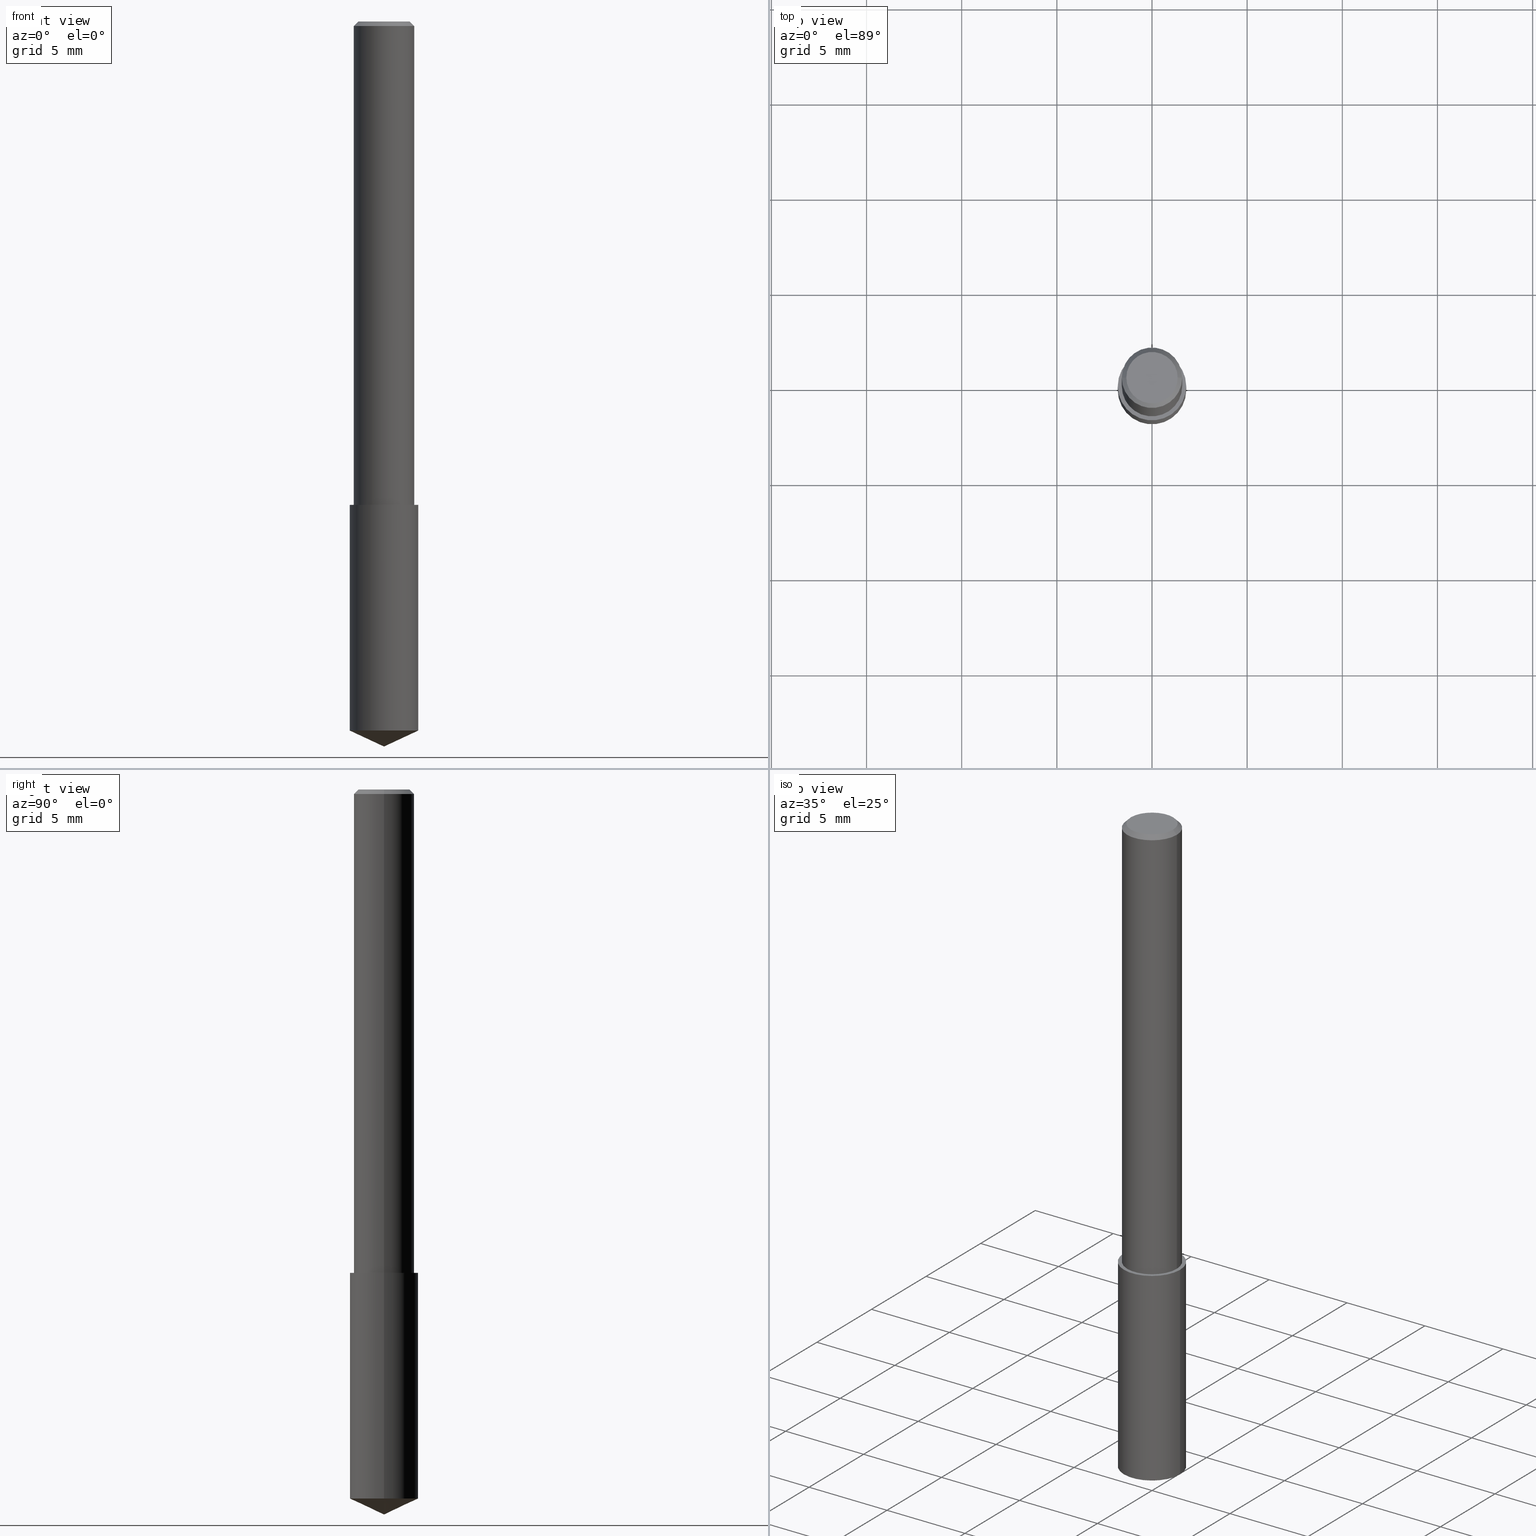
[diagram: canonical four-view strip — front | top / right | iso, engineering-drawing reading convention]
A machine part, canonical four-view strip (front | top / right | iso — engineering-drawing reading convention). The complete STEP part file that produces these views, byte-faithful:
ISO-10303-21;
HEADER;
FILE_DESCRIPTION (( 'STEP AP203' ),
    '1' );
FILE_NAME ('06081.STEP',
    '2024-04-30T18:19:45',
    ( '' ),
    ( '' ),
    'SwSTEP 2.0',
    'SolidWorks 2023',
    '' );
FILE_SCHEMA (( 'CONFIG_CONTROL_DESIGN' ));
ENDSEC;

DATA;
#1 = CIRCLE ( 'NONE', #188, 0.07084999999999999631 ) ;
#2 = CARTESIAN_POINT ( 'NONE',  ( -0.06250000000000012490, -1.318017778347335489E-15, -1.000000000000000222 ) ) ;
#3 = PLANE ( 'NONE',  #149 ) ;
#4 =( LENGTH_UNIT ( ) NAMED_UNIT ( * ) SI_UNIT ( $, .METRE. ) );
#5 = DIRECTION ( 'NONE',  ( 1.000000000000000000, -6.982962677686266711E-15, 4.876176628004948512E-29 ) ) ;
#6 = LINE ( 'NONE', #111, #233 ) ;
#7 = AXIS2_PLACEMENT_3D ( 'NONE', #167, #271, #143 ) ;
#8 = FACE_OUTER_BOUND ( 'NONE', #27, .T. ) ;
#9 = FACE_OUTER_BOUND ( 'NONE', #336, .T. ) ;
#10 = DIRECTION ( 'NONE',  ( 0.9063077870366499367, -4.853149677051380368E-15, 0.4226182617406991082 ) ) ;
#11 = DIRECTION ( 'NONE',  ( -1.000000000000000000, 6.982962677686265922E-15, -4.876176775795935793E-29 ) ) ;
#12 = PERSON_AND_ORGANIZATION_ROLE ( 'creator' ) ;
#13 = AXIS2_PLACEMENT_3D ( 'NONE', #178, #123, #198 ) ;
#14 = DATE_AND_TIME ( #173, #67 ) ;
#15 = PERSON_AND_ORGANIZATION ( #204, #201 ) ;
#16 = LINE ( 'NONE', #20, #108 ) ;
#17 = EDGE_CURVE ( 'NONE', #153, #262, #289, .T. ) ;
#18 = AXIS2_PLACEMENT_3D ( 'NONE', #265, #136, #11 ) ;
#19 = PERSON_AND_ORGANIZATION ( #204, #201 ) ;
#20 = CARTESIAN_POINT ( 'NONE',  ( 0.06250000000000006939, -4.364351673553921624E-16, 3.047610484872463374E-30 ) ) ;
#21 = DIRECTION ( 'NONE',  ( -0.9063077870366499367, 7.915267918739013053E-15, 0.4226182617406991082 ) ) ;
#22 = ORIENTED_EDGE ( 'NONE', *, *, #68, .F. ) ;
#23 = ORIENTED_EDGE ( 'NONE', *, *, #210, .F. ) ;
#24 = EDGE_LOOP ( 'NONE', ( #232, #338 ) ) ;
#25 = ADVANCED_FACE ( 'NONE', ( #176 ), #224, .T. ) ;
#26 = EDGE_LOOP ( 'NONE', ( #125, #339, #29, #107 ) ) ;
#27 = EDGE_LOOP ( 'NONE', ( #155, #257, #209 ) ) ;
#28 = CC_DESIGN_APPROVAL ( #340, ( #134 ) ) ;
#29 = ORIENTED_EDGE ( 'NONE', *, *, #87, .T. ) ;
#30 = ORIENTED_EDGE ( 'NONE', *, *, #157, .T. ) ;
#31 = CLOSED_SHELL ( 'NONE', ( #261, #25, #236, #320, #203 ) ) ;
#32 = PRODUCT ( '06081', '06081', '', ( #47 ) ) ;
#33 = DIRECTION ( 'NONE',  ( 1.000000000000000000, -6.982962677686263555E-15, 0.000000000000000000 ) ) ;
#34 = DIRECTION ( 'NONE',  ( -0.7071067811865453523, 2.468850131082234184E-15, -0.7071067811865496822 ) ) ;
#35 = CARTESIAN_POINT ( 'NONE',  ( 3.587410061323187076E-29, -5.121870805388554616E-15, -1.466962102419718583 ) ) ;
#36 = DIRECTION ( 'NONE',  ( 0.7071067811865453523, -7.319954787623248157E-15, -0.7071067811865496822 ) ) ;
#37 = CIRCLE ( 'NONE', #220, 0.07084999999999999631 ) ;
#38 = DIRECTION ( 'NONE',  ( -2.445468806185136597E-29, 3.491481338843145583E-15, 1.000000000000000000 ) ) ;
#39 = APPLICATION_PROTOCOL_DEFINITION ( 'international standard', 'config_control_design', 1994, #250 ) ;
#40 = CC_DESIGN_PERSON_AND_ORGANIZATION_ASSIGNMENT ( #330, #247, ( #163 ) ) ;
#41 = APPROVAL_STATUS ( 'not_yet_approved' ) ;
#42 = AXIS2_PLACEMENT_3D ( 'NONE', #230, #174, #226 ) ;
#43 = APPROVAL_PERSON_ORGANIZATION ( #65, #278, #98 ) ;
#44 = COORDINATED_UNIVERSAL_TIME_OFFSET ( 5, 0, .BEHIND. ) ;
#45 = ORIENTED_EDGE ( 'NONE', *, *, #152, .F. ) ;
#46 = ADVANCED_FACE ( 'NONE', ( #127 ), #179, .T. ) ;
#47 = MECHANICAL_CONTEXT ( 'NONE', #250, 'mechanical' ) ;
#48 = ORIENTED_EDGE ( 'NONE', *, *, #91, .T. ) ;
#49 = CARTESIAN_POINT ( 'NONE',  ( 0.07084999999999999631, -3.986224244557217443E-15, -1.000000000000000222 ) ) ;
#50 = AXIS2_PLACEMENT_3D ( 'NONE', #137, #219, #33 ) ;
#51 = CARTESIAN_POINT ( 'NONE',  ( -7.487088864773345706E-50, 1.068957861474247695E-35, 3.061616997868395197E-21 ) ) ;
#52 = DIRECTION ( 'NONE',  ( 1.000000000000000000, -6.982962677686266711E-15, 4.876176628004948512E-29 ) ) ;
#53 = ORIENTED_EDGE ( 'NONE', *, *, #157, .F. ) ;
#54 = EDGE_LOOP ( 'NONE', ( #255, #229, #273, #154 ) ) ;
#55 = CARTESIAN_POINT ( 'NONE',  ( 2.445468806185136877E-29, -3.491481338843145977E-15, -1.000000000000000222 ) ) ;
#56 = EDGE_LOOP ( 'NONE', ( #48, #96, #23, #231 ) ) ;
#57 = EDGE_CURVE ( 'NONE', #74, #73, #326, .T. ) ;
#58 = AXIS2_PLACEMENT_3D ( 'NONE', #298, #139, #62 ) ;
#59 = DIRECTION ( 'NONE',  ( -1.000000000000000000, 6.982962677686265922E-15, -4.876176775795935793E-29 ) ) ;
#60 = DIRECTION ( 'NONE',  ( 1.000000000000000000, -6.982962677686266711E-15, 4.876176775795935793E-29 ) ) ;
#61 =( NAMED_UNIT ( * ) SI_UNIT ( $, .STERADIAN. ) SOLID_ANGLE_UNIT ( ) );
#62 = DIRECTION ( 'NONE',  ( 1.000000000000000000, -6.982962677686263555E-15, 0.000000000000000000 ) ) ;
#63 = AXIS2_PLACEMENT_3D ( 'NONE', #242, #164, #237 ) ;
#64 = APPROVAL_PERSON_ORGANIZATION ( #194, #195, #306 ) ;
#65 = PERSON_AND_ORGANIZATION ( #204, #201 ) ;
#66 = DATE_TIME_ROLE ( 'creation_date' ) ;
#67 = LOCAL_TIME ( 14, 19, 45.00000000000000000, #144 ) ;
#68 = EDGE_CURVE ( 'NONE', #197, #291, #259, .T. ) ;
#69 = PERSON_AND_ORGANIZATION ( #204, #201 ) ;
#70 = DIRECTION ( 'NONE',  ( -2.445468806185136597E-29, 3.491481338843145583E-15, 1.000000000000000000 ) ) ;
#71 = PRODUCT_RELATED_PRODUCT_CATEGORY ( 'detail', '', ( #32 ) ) ;
#72 = CALENDAR_DATE ( 2024, 30, 4 ) ;
#73 = VERTEX_POINT ( 'NONE', #284 ) ;
#74 = VERTEX_POINT ( 'NONE', #280 ) ;
#75 = ADVANCED_FACE ( 'NONE', ( #148 ), #282, .F. ) ;
#76 = DIRECTION ( 'NONE',  ( -2.445468806185136597E-29, 3.491481338843145583E-15, 1.000000000000000000 ) ) ;
#77 = LINE ( 'NONE', #202, #244 ) ;
#78 = EDGE_LOOP ( 'NONE', ( #287, #333, #256, #53 ) ) ;
#79 = LINE ( 'NONE', #253, #182 ) ;
#80 = ORIENTED_EDGE ( 'NONE', *, *, #272, .F. ) ;
#81 = DIRECTION ( 'NONE',  ( -2.445468806185136877E-29, 3.491481338843145188E-15, 1.000000000000000000 ) ) ;
#82 = VECTOR ( 'NONE', #36, 39.37007874015748143 ) ;
#83 = CC_DESIGN_APPROVAL ( #195, ( #163 ) ) ;
#84 = FACE_OUTER_BOUND ( 'NONE', #205, .T. ) ;
#85 = PRODUCT_DEFINITION_SHAPE ( 'NONE', 'NONE',  #163 ) ;
#86 = ADVANCED_BREP_SHAPE_REPRESENTATION ( '06081', ( #135, #146, #151 ), #294 ) ;
#87 = EDGE_CURVE ( 'NONE', #291, #227, #16, .T. ) ;
#88 = CYLINDRICAL_SURFACE ( 'NONE', #208, 0.06250000000000006939 ) ;
#89 = CARTESIAN_POINT ( 'NONE',  ( 2.292627005798580623E-31, -3.273263755165470801E-17, -0.009375000000000062103 ) ) ;
#90 = CARTESIAN_POINT ( 'NONE',  ( 0.06250000000000000000, -4.615137624123753937E-16, -0.009375000000000062103 ) ) ;
#91 = EDGE_CURVE ( 'NONE', #291, #197, #177, .T. ) ;
#92 = CLOSED_SHELL ( 'NONE', ( #129, #311, #75, #46, #288, #254 ) ) ;
#93 = PERSON_AND_ORGANIZATION_ROLE ( 'classification_officer' ) ;
#94 = VERTEX_POINT ( 'NONE', #49 ) ;
#95 = PERSON_AND_ORGANIZATION_ROLE ( 'design_supplier' ) ;
#96 = ORIENTED_EDGE ( 'NONE', *, *, #109, .T. ) ;
#97 = AXIS2_PLACEMENT_3D ( 'NONE', #51, #105, #5 ) ;
#98 = APPROVAL_ROLE ( '' ) ;
#99 = ORIENTED_EDGE ( 'NONE', *, *, #152, .T. ) ;
#100 = CC_DESIGN_DATE_AND_TIME_ASSIGNMENT ( #328, #189, ( #275 ) ) ;
#101 = CARTESIAN_POINT ( 'NONE',  ( -9.261009624683002666E-28, 1.322226732217803884E-13, 37.87007874015748143 ) ) ;
#102 = DIRECTION ( 'NONE',  ( -2.445468806185136597E-29, 3.491481338843145583E-15, 1.000000000000000000 ) ) ;
#103 = DIRECTION ( 'NONE',  ( 1.000000000000000000, -6.982962677686266711E-15, 4.876176775795935793E-29 ) ) ;
#104 = AXIS2_PLACEMENT_3D ( 'NONE', #249, #70, #103 ) ;
#105 = DIRECTION ( 'NONE',  ( -2.445468806185136597E-29, 3.491481338843145583E-15, 1.000000000000000000 ) ) ;
#106 = ORIENTED_EDGE ( 'NONE', *, *, #187, .F. ) ;
#107 = ORIENTED_EDGE ( 'NONE', *, *, #191, .F. ) ;
#108 = VECTOR ( 'NONE', #310, 39.37007874015748143 ) ;
#109 = EDGE_CURVE ( 'NONE', #197, #332, #77, .T. ) ;
#110 = DIRECTION ( 'NONE',  ( -1.000000000000000000, 6.982962677686266711E-15, 0.000000000000000000 ) ) ;
#111 = CARTESIAN_POINT ( 'NONE',  ( 0.07084999999999999631, -3.986224244557218232E-15, -1.000000000000000222 ) ) ;
#112 = CYLINDRICAL_SURFACE ( 'NONE', #50, 0.07084999999999999631 ) ;
#113 = CARTESIAN_POINT ( 'NONE',  ( 0.05312499999999999861, -4.129888592719939842E-16, 3.061617000609493422E-21 ) ) ;
#114 = DIRECTION ( 'NONE',  ( 1.000000000000000000, -6.982962677686263555E-15, 0.000000000000000000 ) ) ;
#115 = FACE_OUTER_BOUND ( 'NONE', #54, .T. ) ;
#116 = AXIS2_PLACEMENT_3D ( 'NONE', #156, #200, #286 ) ;
#117 = VECTOR ( 'NONE', #34, 39.37007874015748143 ) ;
#118 = APPROVAL_STATUS ( 'not_yet_approved' ) ;
#119 = DATE_AND_TIME ( #274, #171 ) ;
#120 = CALENDAR_DATE ( 2024, 30, 4 ) ;
#121 = CARTESIAN_POINT ( 'NONE',  ( -7.487088864773345706E-50, 1.068957861474247695E-35, 3.061616997868395197E-21 ) ) ;
#122 = CC_DESIGN_SECURITY_CLASSIFICATION ( #275, ( #134 ) ) ;
#123 = DIRECTION ( 'NONE',  ( -2.445468806185136597E-29, 3.491481338843145583E-15, 1.000000000000000000 ) ) ;
#124 = CARTESIAN_POINT ( 'NONE',  ( -0.07084999999999999631, -3.803256543829818749E-15, -1.000000000000000222 ) ) ;
#125 = ORIENTED_EDGE ( 'NONE', *, *, #109, .F. ) ;
#126 = EDGE_LOOP ( 'NONE', ( #325, #22 ) ) ;
#127 = FACE_OUTER_BOUND ( 'NONE', #26, .T. ) ;
#128 = ORIENTED_EDGE ( 'NONE', *, *, #17, .F. ) ;
#129 = ADVANCED_FACE ( 'NONE', ( #180 ), #239, .T. ) ;
#130 = VERTEX_POINT ( 'NONE', #124 ) ;
#131 = ORIENTED_EDGE ( 'NONE', *, *, #210, .T. ) ;
#132 = AXIS2_PLACEMENT_3D ( 'NONE', #121, #76, #52 ) ;
#133 = EDGE_CURVE ( 'NONE', #322, #74, #79, .T. ) ;
#134 = PRODUCT_DEFINITION_FORMATION_WITH_SPECIFIED_SOURCE ( 'ANY', '', #32, .NOT_KNOWN. ) ;
#135 = MANIFOLD_SOLID_BREP ( 'Body-Move/Copy2[1]', #31 ) ;
#136 = DIRECTION ( 'NONE',  ( 2.438088387897960049E-29, -3.491481338843145188E-15, -1.000000000000000000 ) ) ;
#137 = CARTESIAN_POINT ( 'NONE',  ( 2.445468806185137438E-29, -3.491481338843146371E-15, -1.000000000000000222 ) ) ;
#138 =( NAMED_UNIT ( * ) PLANE_ANGLE_UNIT ( ) SI_UNIT ( $, .RADIAN. ) );
#139 = DIRECTION ( 'NONE',  ( -2.445468806185136597E-29, 3.491481338843145583E-15, 1.000000000000000000 ) ) ;
#140 = CC_DESIGN_PERSON_AND_ORGANIZATION_ASSIGNMENT ( #19, #304, ( #32 ) ) ;
#141 = DIRECTION ( 'NONE',  ( -2.445468806185136877E-29, 3.491481338843145188E-15, 1.000000000000000000 ) ) ;
#142 = CARTESIAN_POINT ( 'NONE',  ( 0.000000000000000000, 0.000000000000000000, 0.000000000000000000 ) ) ;
#143 = DIRECTION ( 'NONE',  ( 1.000000000000000000, -6.982962677686266711E-15, 0.000000000000000000 ) ) ;
#144 = COORDINATED_UNIVERSAL_TIME_OFFSET ( 5, 0, .BEHIND. ) ;
#145 = EDGE_CURVE ( 'NONE', #94, #130, #37, .T. ) ;
#146 = MANIFOLD_SOLID_BREP ( 'Body-Move/Copy2[2]', #92 ) ;
#147 = CARTESIAN_POINT ( 'NONE',  ( 2.445468806185137438E-29, -3.491481338843146371E-15, -1.000000000000000222 ) ) ;
#148 = FACE_OUTER_BOUND ( 'NONE', #126, .T. ) ;
#149 = AXIS2_PLACEMENT_3D ( 'NONE', #211, #293, #59 ) ;
#150 = DIRECTION ( 'NONE',  ( 2.445468806185136597E-29, -3.491481338843145583E-15, -1.000000000000000000 ) ) ;
#151 = AXIS2_PLACEMENT_3D ( 'NONE', #142, #281, #302 ) ;
#152 = EDGE_CURVE ( 'NONE', #153, #227, #260, .T. ) ;
#153 = VERTEX_POINT ( 'NONE', #113 ) ;
#154 = ORIENTED_EDGE ( 'NONE', *, *, #276, .F. ) ;
#155 = ORIENTED_EDGE ( 'NONE', *, *, #133, .F. ) ;
#156 = CARTESIAN_POINT ( 'NONE',  ( 3.587410061323187076E-29, -5.121870805388554616E-15, -1.466962102419718583 ) ) ;
#157 = EDGE_CURVE ( 'NONE', #130, #94, #312, .T. ) ;
#158 = DIRECTION ( 'NONE',  ( 1.000000000000000000, -6.982962677686263555E-15, 0.000000000000000000 ) ) ;
#159 = CIRCLE ( 'NONE', #166, 0.06250000000000000000 ) ;
#160 = CC_DESIGN_PERSON_AND_ORGANIZATION_ASSIGNMENT ( #69, #93, ( #275 ) ) ;
#161 = DIRECTION ( 'NONE',  ( -2.445468806185136597E-29, 3.491481338843145583E-15, 1.000000000000000000 ) ) ;
#162 = LINE ( 'NONE', #321, #117 ) ;
#163 = PRODUCT_DEFINITION ( 'UNKNOWN', '', #134, #299 ) ;
#164 = DIRECTION ( 'NONE',  ( -2.445468806185136597E-29, 3.491481338843145583E-15, 1.000000000000000000 ) ) ;
#165 = LINE ( 'NONE', #269, #305 ) ;
#166 = AXIS2_PLACEMENT_3D ( 'NONE', #89, #186, #296 ) ;
#167 = CARTESIAN_POINT ( 'NONE',  ( 2.292627005798580623E-31, -3.273263755165470801E-17, -0.009375000000000062103 ) ) ;
#168 = EDGE_CURVE ( 'NONE', #74, #130, #165, .T. ) ;
#169 = APPLICATION_CONTEXT ( 'configuration controlled 3d designs of mechanical parts and assemblies' ) ;
#170 = APPROVAL_ROLE ( '' ) ;
#171 = LOCAL_TIME ( 14, 19, 45.00000000000000000, #279 ) ;
#172 = SECURITY_CLASSIFICATION_LEVEL ( 'unclassified' ) ;
#173 = CALENDAR_DATE ( 2024, 30, 4 ) ;
#174 = DIRECTION ( 'NONE',  ( -2.445468806185136597E-29, 3.491481338843145583E-15, 1.000000000000000000 ) ) ;
#175 = APPROVAL_STATUS ( 'not_yet_approved' ) ;
#176 = FACE_OUTER_BOUND ( 'NONE', #290, .T. ) ;
#177 = CIRCLE ( 'NONE', #13, 0.06250000000000012490 ) ;
#178 = CARTESIAN_POINT ( 'NONE',  ( 2.445468806185137438E-29, -3.491481338843146371E-15, -1.000000000000000222 ) ) ;
#179 = CYLINDRICAL_SURFACE ( 'NONE', #104, 0.06250000000000006939 ) ;
#180 = FACE_OUTER_BOUND ( 'NONE', #313, .T. ) ;
#181 = DIRECTION ( 'NONE',  ( -1.000000000000000000, 6.982962677686266711E-15, 0.000000000000000000 ) ) ;
#182 = VECTOR ( 'NONE', #21, 39.37007874015748854 ) ;
#183 = CARTESIAN_POINT ( 'NONE',  ( -0.05312499999999999861, 3.873362110279099094E-16, 3.061616995216862494E-21 ) ) ;
#184 = CARTESIAN_POINT ( 'NONE',  ( 0.06250000000000012490, -3.927916506198539224E-15, -1.000000000000000222 ) ) ;
#185 = DIRECTION ( 'NONE',  ( -2.445468806185136597E-29, 3.491481338843145583E-15, 1.000000000000000000 ) ) ;
#186 = DIRECTION ( 'NONE',  ( -2.445468806185136597E-29, 3.491481338843145583E-15, 1.000000000000000000 ) ) ;
#187 = EDGE_CURVE ( 'NONE', #322, #73, #323, .T. ) ;
#188 = AXIS2_PLACEMENT_3D ( 'NONE', #35, #161, #217 ) ;
#189 = DATE_TIME_ROLE ( 'classification_date' ) ;
#190 = ORIENTED_EDGE ( 'NONE', *, *, #214, .F. ) ;
#191 = EDGE_CURVE ( 'NONE', #332, #227, #159, .T. ) ;
#192 = COORDINATED_UNIVERSAL_TIME_OFFSET ( 5, 0, .BEHIND. ) ;
#193 = CIRCLE ( 'NONE', #97, 0.05312499999999999861 ) ;
#194 = PERSON_AND_ORGANIZATION ( #204, #201 ) ;
#195 = APPROVAL ( #118, 'UNSPECIFIED' ) ;
#196 = APPROVAL_DATE_TIME ( #225, #278 ) ;
#197 = VERTEX_POINT ( 'NONE', #2 ) ;
#198 = DIRECTION ( 'NONE',  ( 1.000000000000000000, -6.982962677686264344E-15, 0.000000000000000000 ) ) ;
#199 = CIRCLE ( 'NONE', #7, 0.06250000000000000000 ) ;
#200 = DIRECTION ( 'NONE',  ( -2.445468806185136597E-29, 3.491481338843145583E-15, 1.000000000000000000 ) ) ;
#201 = ORGANIZATION ( 'UNSPECIFIED', 'UNSPECIFIED', '' ) ;
#202 = CARTESIAN_POINT ( 'NONE',  ( -0.06250000000000006939, 4.440892098500631092E-16, -3.074334431409319267E-30 ) ) ;
#203 = ADVANCED_FACE ( 'NONE', ( #84 ), #3, .F. ) ;
#204 = PERSON ( 'UNSPECIFIED', 'UNSPECIFIED', 'UNSPECIFIED', ('UNSPECIFIED'), ('UNSPECIFIED'), ('UNSPECIFIED') ) ;
#205 = EDGE_LOOP ( 'NONE', ( #334, #30 ) ) ;
#206 = ORIENTED_EDGE ( 'NONE', *, *, #191, .T. ) ;
#207 = CONICAL_SURFACE ( 'NONE', #63, 84.42940631927402251, 1.134464013796314452 ) ;
#208 = AXIS2_PLACEMENT_3D ( 'NONE', #235, #38, #60 ) ;
#209 = ORIENTED_EDGE ( 'NONE', *, *, #57, .F. ) ;
#210 = EDGE_CURVE ( 'NONE', #227, #332, #199, .T. ) ;
#211 = CARTESIAN_POINT ( 'NONE',  ( 3.791720929041147221E-29, -1.563571675001040683E-15, -1.000000000000000222 ) ) ;
#212 = LENGTH_MEASURE_WITH_UNIT ( LENGTH_MEASURE( 0.02539999999999999897 ), #4 );
#213 = CARTESIAN_POINT ( 'NONE',  ( 2.292627005798580623E-31, -3.273263755165470801E-17, -0.009375000000000062103 ) ) ;
#214 = EDGE_CURVE ( 'NONE', #262, #153, #193, .T. ) ;
#215 = VECTOR ( 'NONE', #10, 39.37007874015748854 ) ;
#216 = FACE_OUTER_BOUND ( 'NONE', #78, .T. ) ;
#217 = DIRECTION ( 'NONE',  ( 1.000000000000000000, -6.982962677686263555E-15, 0.000000000000000000 ) ) ;
#218 = CC_DESIGN_PERSON_AND_ORGANIZATION_ASSIGNMENT ( #251, #95, ( #134 ) ) ;
#219 = DIRECTION ( 'NONE',  ( -2.445468806185136597E-29, 3.491481338843145583E-15, 1.000000000000000000 ) ) ;
#220 = AXIS2_PLACEMENT_3D ( 'NONE', #55, #102, #158 ) ;
#221 = LOCAL_TIME ( 14, 19, 45.00000000000000000, #44 ) ;
#222 = APPROVAL_DATE_TIME ( #119, #195 ) ;
#223 = DATE_AND_TIME ( #72, #264 ) ;
#224 = CONICAL_SURFACE ( 'NONE', #329, 84.42940631927402251, 1.134464013796314452 ) ;
#225 = DATE_AND_TIME ( #120, #245 ) ;
#226 = DIRECTION ( 'NONE',  ( 1.000000000000000000, -6.982962677686264344E-15, 0.000000000000000000 ) ) ;
#227 = VERTEX_POINT ( 'NONE', #300 ) ;
#228 = DIRECTION ( 'NONE',  ( -2.445468806185136597E-29, 3.491481338843145583E-15, 1.000000000000000000 ) ) ;
#229 = ORIENTED_EDGE ( 'NONE', *, *, #168, .T. ) ;
#230 = CARTESIAN_POINT ( 'NONE',  ( 2.445468806185137438E-29, -3.491481338843146371E-15, -1.000000000000000222 ) ) ;
#231 = ORIENTED_EDGE ( 'NONE', *, *, #87, .F. ) ;
#232 = ORIENTED_EDGE ( 'NONE', *, *, #214, .T. ) ;
#233 = VECTOR ( 'NONE', #324, 39.37007874015748143 ) ;
#234 = APPROVAL_PERSON_ORGANIZATION ( #246, #340, #170 ) ;
#235 = CARTESIAN_POINT ( 'NONE',  ( 0.000000000000000000, 0.000000000000000000, 0.000000000000000000 ) ) ;
#236 = ADVANCED_FACE ( 'NONE', ( #8 ), #207, .T. ) ;
#237 = DIRECTION ( 'NONE',  ( 1.000000000000000000, -6.982962677686266711E-15, 0.000000000000000000 ) ) ;
#238 = CYLINDRICAL_SURFACE ( 'NONE', #270, 0.07084999999999999631 ) ;
#239 = CONICAL_SURFACE ( 'NONE', #268, 0.06250000000000000000, 0.7853981633974452814 ) ;
#240 = PLANE ( 'NONE',  #18 ) ;
#241 = CARTESIAN_POINT ( 'NONE',  ( 3.668203209277704895E-29, -5.237222008264718177E-15, -1.500000000000000222 ) ) ;
#242 = CARTESIAN_POINT ( 'NONE',  ( -9.261009624683002666E-28, 1.322226732217803884E-13, 37.87007874015748143 ) ) ;
#243 = CC_DESIGN_DATE_AND_TIME_ASSIGNMENT ( #14, #66, ( #163 ) ) ;
#244 = VECTOR ( 'NONE', #81, 39.37007874015748143 ) ;
#245 = LOCAL_TIME ( 14, 19, 45.00000000000000000, #277 ) ;
#246 = PERSON_AND_ORGANIZATION ( #204, #201 ) ;
#247 = PERSON_AND_ORGANIZATION_ROLE ( 'creator' ) ;
#248 = APPROVAL_DATE_TIME ( #223, #340 ) ;
#249 = CARTESIAN_POINT ( 'NONE',  ( 0.000000000000000000, 0.000000000000000000, 0.000000000000000000 ) ) ;
#250 = APPLICATION_CONTEXT ( 'configuration controlled 3d designs of mechanical parts and assemblies' ) ;
#251 = PERSON_AND_ORGANIZATION ( #204, #201 ) ;
#252 = DIRECTION ( 'NONE',  ( -2.438088387897960049E-29, 3.491481338843145188E-15, 1.000000000000000000 ) ) ;
#253 = CARTESIAN_POINT ( 'NONE',  ( 3.668203209277704895E-29, -5.237222008264718177E-15, -1.500000000000000222 ) ) ;
#254 = ADVANCED_FACE ( 'NONE', ( #297 ), #240, .F. ) ;
#255 = ORIENTED_EDGE ( 'NONE', *, *, #272, .T. ) ;
#256 = ORIENTED_EDGE ( 'NONE', *, *, #276, .T. ) ;
#257 = ORIENTED_EDGE ( 'NONE', *, *, #187, .T. ) ;
#258 = CARTESIAN_POINT ( 'NONE',  ( 2.292627005798580623E-31, -3.273263755165470801E-17, -0.009375000000000062103 ) ) ;
#259 = CIRCLE ( 'NONE', #42, 0.06250000000000012490 ) ;
#260 = LINE ( 'NONE', #90, #82 ) ;
#261 = ADVANCED_FACE ( 'NONE', ( #115 ), #112, .T. ) ;
#262 = VERTEX_POINT ( 'NONE', #183 ) ;
#263 = CARTESIAN_POINT ( 'NONE',  ( 3.668203209277704895E-29, -5.237222008264718177E-15, -1.500000000000000222 ) ) ;
#264 = LOCAL_TIME ( 14, 19, 45.00000000000000000, #192 ) ;
#265 = CARTESIAN_POINT ( 'NONE',  ( -3.743544432386672853E-50, 5.344789307371238476E-36, 1.530808498934197599E-21 ) ) ;
#266 = UNCERTAINTY_MEASURE_WITH_UNIT (LENGTH_MEASURE( 1.000000000000000082E-05 ), #317, 'distance_accuracy_value', 'NONE');
#267 = DIRECTION ( 'NONE',  ( 2.445468806185136597E-29, -3.491481338843145583E-15, -1.000000000000000000 ) ) ;
#268 = AXIS2_PLACEMENT_3D ( 'NONE', #258, #150, #181 ) ;
#269 = CARTESIAN_POINT ( 'NONE',  ( -0.07084999999999999631, -2.988061810557115613E-15, -1.000000000000000222 ) ) ;
#270 = AXIS2_PLACEMENT_3D ( 'NONE', #318, #185, #114 ) ;
#271 = DIRECTION ( 'NONE',  ( -2.445468806185136597E-29, 3.491481338843145583E-15, 1.000000000000000000 ) ) ;
#272 = EDGE_CURVE ( 'NONE', #73, #74, #1, .T. ) ;
#273 = ORIENTED_EDGE ( 'NONE', *, *, #145, .F. ) ;
#274 = CALENDAR_DATE ( 2024, 30, 4 ) ;
#275 = SECURITY_CLASSIFICATION ( '', '', #172 ) ;
#276 = EDGE_CURVE ( 'NONE', #73, #94, #6, .T. ) ;
#277 = COORDINATED_UNIVERSAL_TIME_OFFSET ( 5, 0, .BEHIND. ) ;
#278 = APPROVAL ( #41, 'UNSPECIFIED' ) ;
#279 = COORDINATED_UNIVERSAL_TIME_OFFSET ( 5, 0, .BEHIND. ) ;
#280 = CARTESIAN_POINT ( 'NONE',  ( -0.07084999999999998244, -4.618451277102523068E-15, -1.466962102419718583 ) ) ;
#281 = DIRECTION ( 'NONE',  ( 0.000000000000000000, 0.000000000000000000, 1.000000000000000000 ) ) ;
#282 = PLANE ( 'NONE',  #301 ) ;
#283 = CC_DESIGN_PERSON_AND_ORGANIZATION_ASSIGNMENT ( #15, #12, ( #134 ) ) ;
#284 = CARTESIAN_POINT ( 'NONE',  ( 0.07084999999999998244, -5.616613711102626082E-15, -1.466962102419718583 ) ) ;
#285 = ORIENTED_EDGE ( 'NONE', *, *, #337, .T. ) ;
#286 = DIRECTION ( 'NONE',  ( 1.000000000000000000, -6.982962677686263555E-15, 0.000000000000000000 ) ) ;
#287 = ORIENTED_EDGE ( 'NONE', *, *, #168, .F. ) ;
#288 = ADVANCED_FACE ( 'NONE', ( #9 ), #315, .T. ) ;
#289 = CIRCLE ( 'NONE', #132, 0.05312499999999999861 ) ;
#290 = EDGE_LOOP ( 'NONE', ( #106, #316, #80 ) ) ;
#291 = VERTEX_POINT ( 'NONE', #184 ) ;
#292 = FACE_OUTER_BOUND ( 'NONE', #56, .T. ) ;
#293 = DIRECTION ( 'NONE',  ( 2.438088387897960049E-29, -3.491481338843145188E-15, -1.000000000000000000 ) ) ;
#294 =( GEOMETRIC_REPRESENTATION_CONTEXT ( 3 ) GLOBAL_UNCERTAINTY_ASSIGNED_CONTEXT ( ( #266 ) ) GLOBAL_UNIT_ASSIGNED_CONTEXT ( ( #317, #138, #61 ) ) REPRESENTATION_CONTEXT ( 'NONE', 'WORKASPACE' ) );
#295 = CARTESIAN_POINT ( 'NONE',  ( -0.06250000000000000000, -1.318017778347336672E-15, -0.009375000000000062103 ) ) ;
#296 = DIRECTION ( 'NONE',  ( 1.000000000000000000, -6.982962677686266711E-15, 0.000000000000000000 ) ) ;
#297 = FACE_OUTER_BOUND ( 'NONE', #24, .T. ) ;
#298 = CARTESIAN_POINT ( 'NONE',  ( 2.445468806185136877E-29, -3.491481338843145977E-15, -1.000000000000000222 ) ) ;
#299 = DESIGN_CONTEXT ( 'detailed design', #169, 'design' ) ;
#300 = CARTESIAN_POINT ( 'NONE',  ( 0.06250000000000000000, -4.691678049070463404E-16, -0.009375000000000062103 ) ) ;
#301 = AXIS2_PLACEMENT_3D ( 'NONE', #147, #252, #309 ) ;
#302 = DIRECTION ( 'NONE',  ( 1.000000000000000000, 0.000000000000000000, 0.000000000000000000 ) ) ;
#303 = CALENDAR_DATE ( 2024, 30, 4 ) ;
#304 = PERSON_AND_ORGANIZATION_ROLE ( 'design_owner' ) ;
#305 = VECTOR ( 'NONE', #141, 39.37007874015748143 ) ;
#306 = APPROVAL_ROLE ( '' ) ;
#307 = DIMENSIONAL_EXPONENTS ( 1.000000000000000000, 0.000000000000000000, 0.000000000000000000, 0.000000000000000000, 0.000000000000000000, 0.000000000000000000, 0.000000000000000000 ) ;
#308 = SHAPE_DEFINITION_REPRESENTATION ( #85, #86 ) ;
#309 = DIRECTION ( 'NONE',  ( 1.000000000000000000, -6.982962677686265922E-15, 4.876176775795935793E-29 ) ) ;
#310 = DIRECTION ( 'NONE',  ( -2.445468806185136877E-29, 3.491481338843145188E-15, 1.000000000000000000 ) ) ;
#311 = ADVANCED_FACE ( 'NONE', ( #292 ), #88, .T. ) ;
#312 = CIRCLE ( 'NONE', #58, 0.07084999999999999631 ) ;
#313 = EDGE_LOOP ( 'NONE', ( #128, #99, #131, #314 ) ) ;
#314 = ORIENTED_EDGE ( 'NONE', *, *, #337, .F. ) ;
#315 = CONICAL_SURFACE ( 'NONE', #319, 0.06250000000000000000, 0.7853981633974452814 ) ;
#316 = ORIENTED_EDGE ( 'NONE', *, *, #133, .T. ) ;
#317 =( CONVERSION_BASED_UNIT ( 'INCH', #212 ) LENGTH_UNIT ( ) NAMED_UNIT ( #307 ) );
#318 = CARTESIAN_POINT ( 'NONE',  ( 2.445468806185137438E-29, -3.491481338843146371E-15, -1.000000000000000222 ) ) ;
#319 = AXIS2_PLACEMENT_3D ( 'NONE', #213, #267, #110 ) ;
#320 = ADVANCED_FACE ( 'NONE', ( #216 ), #238, .T. ) ;
#321 = CARTESIAN_POINT ( 'NONE',  ( -0.06250000000000000000, 4.037025298037369984E-16, -0.009375000000000062103 ) ) ;
#322 = VERTEX_POINT ( 'NONE', #263 ) ;
#323 = LINE ( 'NONE', #241, #215 ) ;
#324 = DIRECTION ( 'NONE',  ( -2.445468806185136877E-29, 3.491481338843145188E-15, 1.000000000000000000 ) ) ;
#325 = ORIENTED_EDGE ( 'NONE', *, *, #91, .F. ) ;
#326 = CIRCLE ( 'NONE', #116, 0.07084999999999999631 ) ;
#327 = APPLICATION_PROTOCOL_DEFINITION ( 'international standard', 'config_control_design', 1994, #169 ) ;
#328 = DATE_AND_TIME ( #303, #221 ) ;
#329 = AXIS2_PLACEMENT_3D ( 'NONE', #101, #228, #331 ) ;
#330 = PERSON_AND_ORGANIZATION ( #204, #201 ) ;
#331 = DIRECTION ( 'NONE',  ( 1.000000000000000000, -6.982962677686266711E-15, 0.000000000000000000 ) ) ;
#332 = VERTEX_POINT ( 'NONE', #295 ) ;
#333 = ORIENTED_EDGE ( 'NONE', *, *, #57, .T. ) ;
#334 = ORIENTED_EDGE ( 'NONE', *, *, #145, .T. ) ;
#335 = CC_DESIGN_APPROVAL ( #278, ( #275 ) ) ;
#336 = EDGE_LOOP ( 'NONE', ( #45, #190, #285, #206 ) ) ;
#337 = EDGE_CURVE ( 'NONE', #262, #332, #162, .T. ) ;
#338 = ORIENTED_EDGE ( 'NONE', *, *, #17, .T. ) ;
#339 = ORIENTED_EDGE ( 'NONE', *, *, #68, .T. ) ;
#340 = APPROVAL ( #175, 'UNSPECIFIED' ) ;
ENDSEC;
END-ISO-10303-21;
